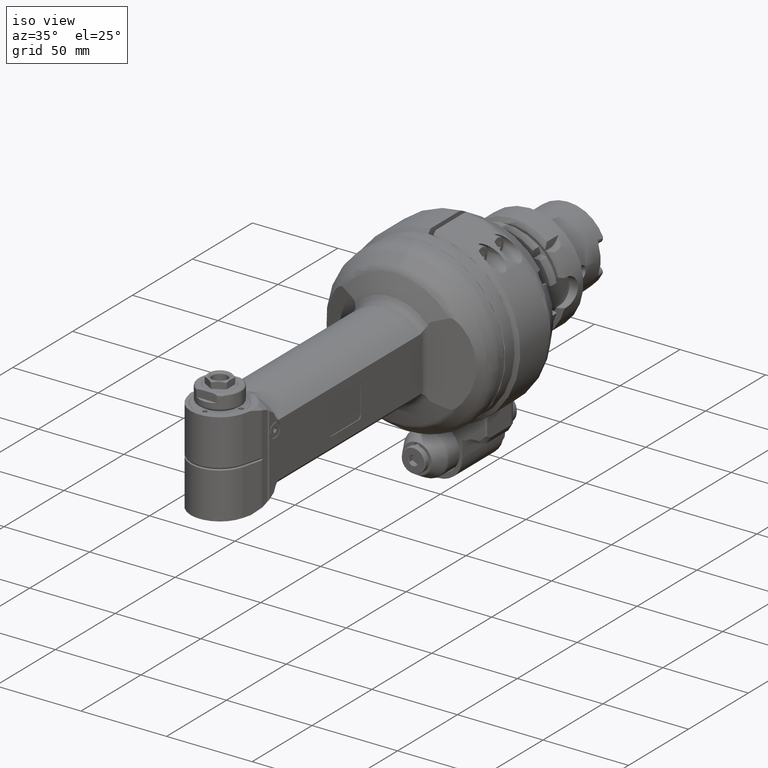
[diagram: clean part render]
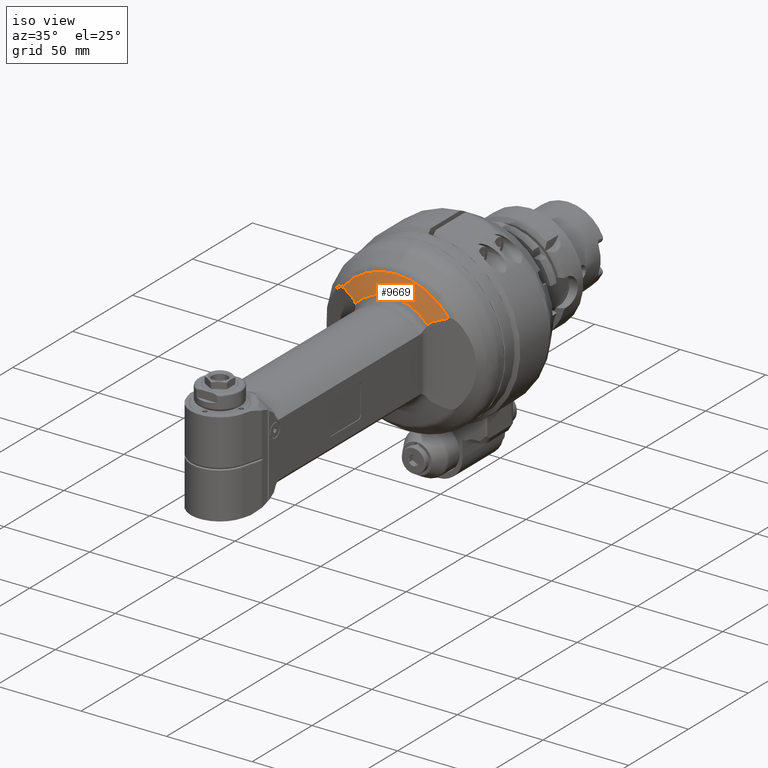
[diagram: same view with one face highlighted and labeled with its STEP entity id]
A machine part, iso view. The second image highlights one B-rep face of the part: STEP entity #9669.
In plain terms, the highlighted conical surface has half-angle 70 deg.
Its self-contained STEP definition (entity closure, byte-faithful):
#58=ELLIPSE('',#10782,693.583496373901,68.2307479871746);
#59=ELLIPSE('',#10788,569.256249040119,60.843438254372);
#737=B_SPLINE_CURVE_WITH_KNOTS('',3,(#47109,#47110,#47111,#47112,#47113,
#47114,#47115,#47116,#47117,#47118,#47119,#47120),.UNSPECIFIED.,.F.,.F.,
(4,2,2,2,2,4),(-6.75928699235427,-6.74329958988916,-6.7094204871498,-6.63908113665253,
-6.56874178615526,-6.51091833724673),.UNSPECIFIED.);
#739=B_SPLINE_CURVE_WITH_KNOTS('',3,(#47134,#47135,#47136,#47137,#47138,
#47139,#47140,#47141,#47142,#47143,#47144,#47145),.UNSPECIFIED.,.F.,.F.,
(4,2,2,2,2,4),(-6.86476547646491,-6.80694202755638,-6.73660267705911,-6.66626332656185,
-6.63238422382248,-6.61639682135737),.UNSPECIFIED.);
#1085=CONICAL_SURFACE('',#10790,34.0374473137,1.22173047639603);
#1520=FACE_OUTER_BOUND('',#2127,.T.);
#2127=EDGE_LOOP('',(#8423,#8424,#8425,#8426,#8427,#8428));
#3864=CIRCLE('',#10785,28.78989928337);
#3865=CIRCLE('',#10791,39.28499534403);
#4714=VERTEX_POINT('',#47083);
#4715=VERTEX_POINT('',#47096);
#4716=VERTEX_POINT('',#47100);
#4717=VERTEX_POINT('',#47122);
#4718=VERTEX_POINT('',#47133);
#4719=VERTEX_POINT('',#47148);
#5986=EDGE_CURVE('',#4714,#4715,#58,.T.);
#5989=EDGE_CURVE('',#4715,#4716,#737,.T.);
#5990=EDGE_CURVE('',#4716,#4717,#3864,.T.);
#5992=EDGE_CURVE('',#4717,#4718,#739,.T.);
#5994=EDGE_CURVE('',#4718,#4719,#59,.T.);
#5997=EDGE_CURVE('',#4719,#4714,#3865,.T.);
#8423=ORIENTED_EDGE('',*,*,#5997,.F.);
#8424=ORIENTED_EDGE('',*,*,#5994,.F.);
#8425=ORIENTED_EDGE('',*,*,#5992,.F.);
#8426=ORIENTED_EDGE('',*,*,#5990,.F.);
#8427=ORIENTED_EDGE('',*,*,#5989,.F.);
#8428=ORIENTED_EDGE('',*,*,#5986,.F.);
#9669=ADVANCED_FACE('',(#1520),#1085,.T.);
#10782=AXIS2_PLACEMENT_3D('',#47097,#13044,#13045);
#10785=AXIS2_PLACEMENT_3D('',#47123,#13051,#13052);
#10788=AXIS2_PLACEMENT_3D('',#47149,#13058,#13059);
#10790=AXIS2_PLACEMENT_3D('',#47164,#13062,#13063);
#10791=AXIS2_PLACEMENT_3D('',#47165,#13064,#13065);
#13044=DIRECTION('center_axis',(0.939692620781296,3.67857206819492E-11,
0.342020143338342));
#13045=DIRECTION('ref_axis',(0.341851830629851,0.0313685303029597,-0.939230185418703));
#13051=DIRECTION('center_axis',(1.,0.,0.));
#13052=DIRECTION('ref_axis',(0.,-0.670777707074111,0.741658457574912));
#13058=DIRECTION('center_axis',(0.93969262078509,4.51913816192593E-12,-0.342020143327917));
#13059=DIRECTION('ref_axis',(0.341774650971483,0.0378817643046114,0.939018136079645));
#13062=DIRECTION('center_axis',(-1.,0.,0.));
#13063=DIRECTION('ref_axis',(0.,-0.83292124071012,0.553391549243313));
#13064=DIRECTION('center_axis',(-1.,0.,0.));
#13065=DIRECTION('ref_axis',(0.,-0.83292124071012,0.553391549243313));
#47083=CARTESIAN_POINT('',(59.98267180163,-24.08284234942,31.03751864366));
#47096=CARTESIAN_POINT('',(63.04205971779,-21.00793488749,22.63191942668));
#47097=CARTESIAN_POINT('Origin',(-164.589522268127,-22.590957073608,648.044550861648));
#47100=CARTESIAN_POINT('',(63.80257437344,-19.31162262831,21.35227229628));
#47109=CARTESIAN_POINT('Ctrl Pts',(63.0420597177826,-21.0079348874829,22.6319194266801));
#47110=CARTESIAN_POINT('Ctrl Pts',(63.060166181417,-20.9884047408871,22.5821723266992));
#47111=CARTESIAN_POINT('Ctrl Pts',(63.0791005829922,-20.964601816726,22.5332633441857));
#47112=CARTESIAN_POINT('Ctrl Pts',(63.1391495910409,-20.8802271797975,22.3863967003613));
#47113=CARTESIAN_POINT('Ctrl Pts',(63.1814425599307,-20.8080010895543,22.2948479059136));
#47114=CARTESIAN_POINT('Ctrl Pts',(63.300258594308,-20.5852651327214,22.056196232483));
#47115=CARTESIAN_POINT('Ctrl Pts',(63.3739919106134,-20.4206492163067,21.9327544194788));
#47116=CARTESIAN_POINT('Ctrl Pts',(63.5146791398422,-20.0862796151951,21.7157201045261));
#47117=CARTESIAN_POINT('Ctrl Pts',(63.5814835324331,-19.9154672484486,21.6236657591858));
#47118=CARTESIAN_POINT('Ctrl Pts',(63.6997273432222,-19.6001067417465,21.4720221231217));
#47119=CARTESIAN_POINT('Ctrl Pts',(63.7516366814927,-19.4564848886753,21.4099535418014));
#47120=CARTESIAN_POINT('Ctrl Pts',(63.8025743734415,-19.3116226283064,21.3522722962904));
#47122=CARTESIAN_POINT('',(63.80257437344,-19.31162262831,-21.35227229628));
#47123=CARTESIAN_POINT('Origin',(63.80257437349,0.,0.));
#47133=CARTESIAN_POINT('',(63.04205971779,-21.00793488749,-22.63191942668));
#47134=CARTESIAN_POINT('Ctrl Pts',(63.8025743734415,-19.3116226283064,-21.3522722962904));
#47135=CARTESIAN_POINT('Ctrl Pts',(63.7516366814927,-19.4564848886753,-21.4099535418014));
#47136=CARTESIAN_POINT('Ctrl Pts',(63.6997273432222,-19.6001067417465,-21.4720221231218));
#47137=CARTESIAN_POINT('Ctrl Pts',(63.5814835324331,-19.9154672484486,-21.6236657591859));
#47138=CARTESIAN_POINT('Ctrl Pts',(63.5146791398422,-20.0862796151951,-21.7157201045261));
#47139=CARTESIAN_POINT('Ctrl Pts',(63.3739919106134,-20.4206492163067,-21.9327544194788));
#47140=CARTESIAN_POINT('Ctrl Pts',(63.300258594308,-20.5852651327214,-22.056196232483));
#47141=CARTESIAN_POINT('Ctrl Pts',(63.1814425599307,-20.8080010895543,-22.2948479059136));
#47142=CARTESIAN_POINT('Ctrl Pts',(63.1391495910409,-20.8802271797975,-22.3863967003613));
#47143=CARTESIAN_POINT('Ctrl Pts',(63.0791005829922,-20.964601816726,-22.5332633441857));
#47144=CARTESIAN_POINT('Ctrl Pts',(63.060166181417,-20.9884047408871,-22.5821723266992));
#47145=CARTESIAN_POINT('Ctrl Pts',(63.0420597177826,-21.0079348874829,-22.6319194266801));
#47148=CARTESIAN_POINT('',(59.98267180163,-24.08284234942,-31.03751864366));
#47149=CARTESIAN_POINT('Origin',(-122.102159485109,-22.5832690143009,-531.311481025435));
#47164=CARTESIAN_POINT('Origin',(61.89262308756,0.,0.));
#47165=CARTESIAN_POINT('Origin',(59.98267180164,0.,0.));